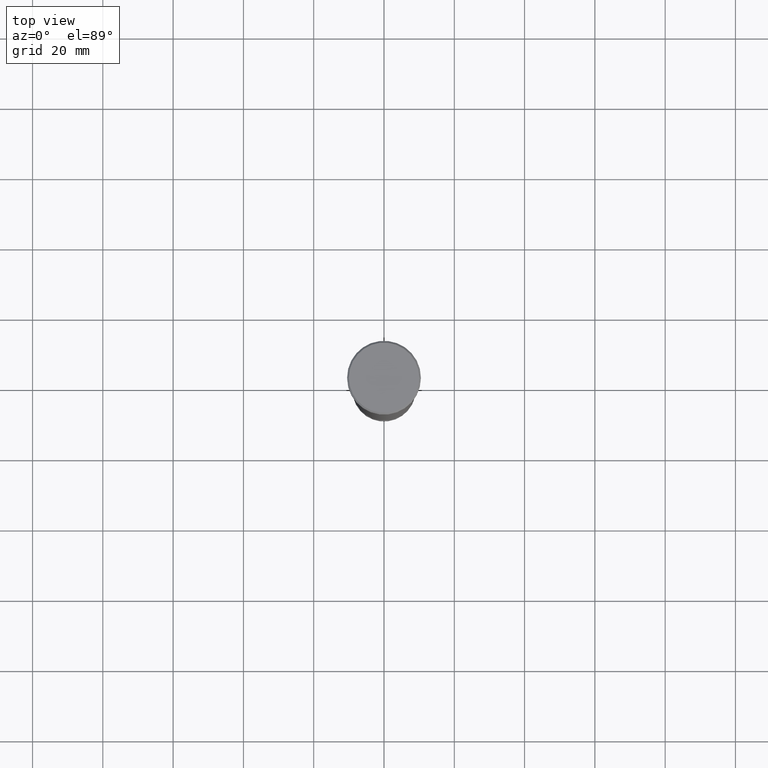
[diagram: clean part render]
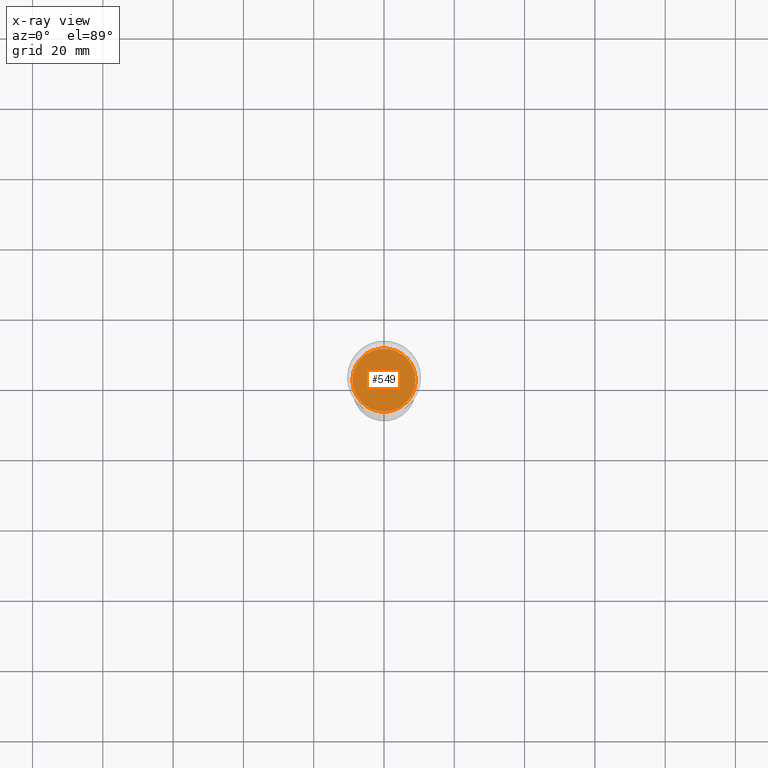
[diagram: x-ray — body ghosted, one internal face saturated and labeled with its STEP entity id]
A machine part, top view, then the same camera in x-ray: the body is ghosted and one INTERNAL B-rep face — a face not visible from any outside direction — is saturated and labeled: STEP entity #549.
In plain terms, the highlighted planar face has unit normal (0, 0, -1).
Its self-contained STEP definition (entity closure, byte-faithful):
#20 = PLANE ( 'NONE',  #608 ) ;
#34 = EDGE_CURVE ( 'NONE', #152, #285, #643, .T. ) ;
#77 = CARTESIAN_POINT ( 'NONE',  ( -9.000000000000000000, 1.102182119232617911E-15, -41.99999999999999289 ) ) ;
#111 = CARTESIAN_POINT ( 'NONE',  ( 0.000000000000000000, 0.000000000000000000, -41.99999999999999289 ) ) ;
#152 = VERTEX_POINT ( 'NONE', #77 ) ;
#197 = CARTESIAN_POINT ( 'NONE',  ( 0.000000000000000000, 0.000000000000000000, -41.99999999999999289 ) ) ;
#268 = EDGE_CURVE ( 'NONE', #285, #152, #720, .T. ) ;
#285 = VERTEX_POINT ( 'NONE', #992 ) ;
#293 = DIRECTION ( 'NONE',  ( 1.000000000000000000, 0.000000000000000000, 0.000000000000000000 ) ) ;
#348 = AXIS2_PLACEMENT_3D ( 'NONE', #111, #746, #293 ) ;
#368 = CARTESIAN_POINT ( 'NONE',  ( 0.000000000000000000, 0.000000000000000000, -41.99999999999999289 ) ) ;
#462 = DIRECTION ( 'NONE',  ( -0.000000000000000000, -0.000000000000000000, 1.000000000000000000 ) ) ;
#463 = DIRECTION ( 'NONE',  ( 0.000000000000000000, 0.000000000000000000, -1.000000000000000000 ) ) ;
#549 = ADVANCED_FACE ( 'NONE', ( #990 ), #20, .F. ) ;
#550 = DIRECTION ( 'NONE',  ( -1.000000000000000000, 0.000000000000000000, -0.000000000000000000 ) ) ;
#608 = AXIS2_PLACEMENT_3D ( 'NONE', #197, #463, #550 ) ;
#643 = CIRCLE ( 'NONE', #1086, 9.000000000000000000 ) ;
#648 = DIRECTION ( 'NONE',  ( 1.000000000000000000, 0.000000000000000000, 0.000000000000000000 ) ) ;
#720 = CIRCLE ( 'NONE', #348, 9.000000000000000000 ) ;
#746 = DIRECTION ( 'NONE',  ( -0.000000000000000000, -0.000000000000000000, 1.000000000000000000 ) ) ;
#833 = EDGE_LOOP ( 'NONE', ( #896, #936 ) ) ;
#896 = ORIENTED_EDGE ( 'NONE', *, *, #268, .T. ) ;
#936 = ORIENTED_EDGE ( 'NONE', *, *, #34, .T. ) ;
#990 = FACE_OUTER_BOUND ( 'NONE', #833, .T. ) ;
#992 = CARTESIAN_POINT ( 'NONE',  ( 9.000000000000000000, 0.000000000000000000, -41.99999999999999289 ) ) ;
#1086 = AXIS2_PLACEMENT_3D ( 'NONE', #368, #462, #648 ) ;